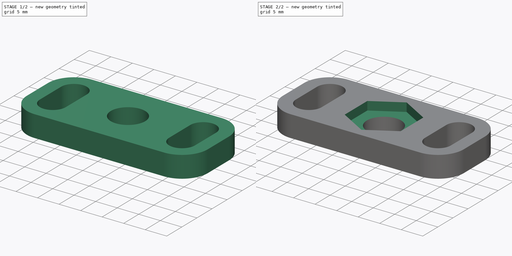
[diagram: build sequence overview — one tinted view per stage of 2, left to right]
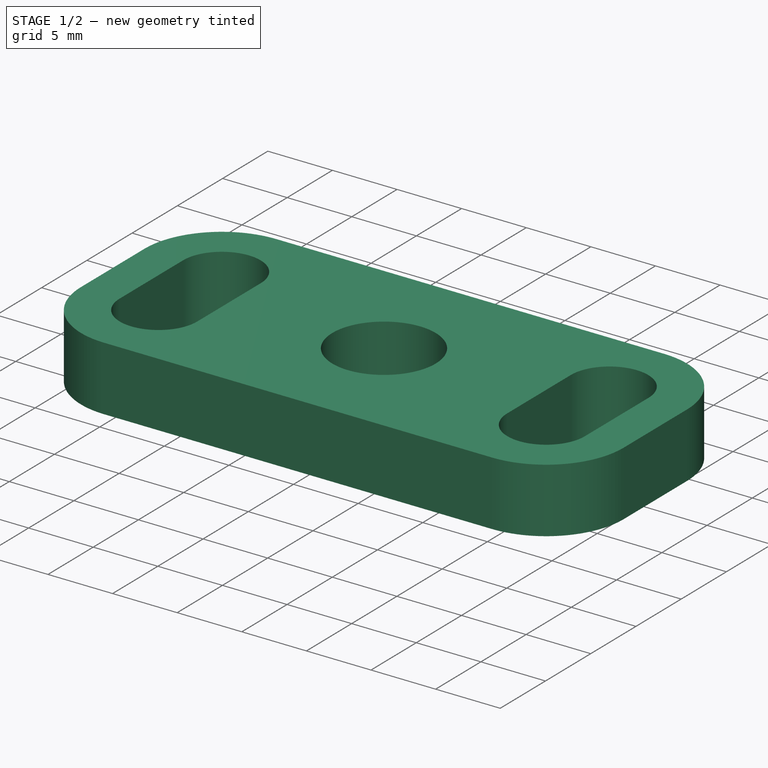
[diagram: stage 1 of 2 — iso view after this stage's code; geometry added in this stage tinted green]
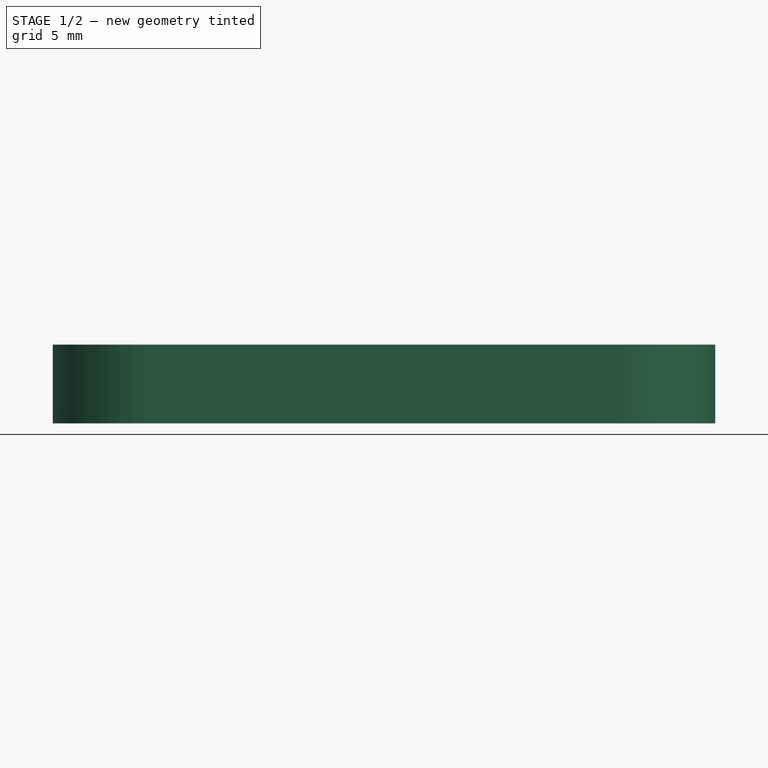
[diagram: stage 1 of 2 — front view after this stage's code; geometry added in this stage tinted green]
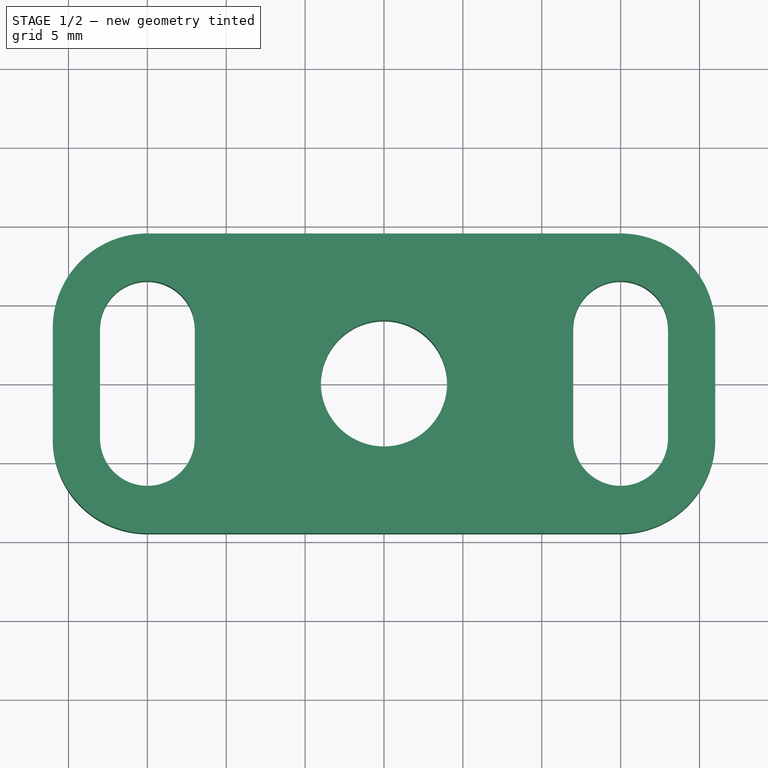
[diagram: stage 1 of 2 — top view after this stage's code; geometry added in this stage tinted green]
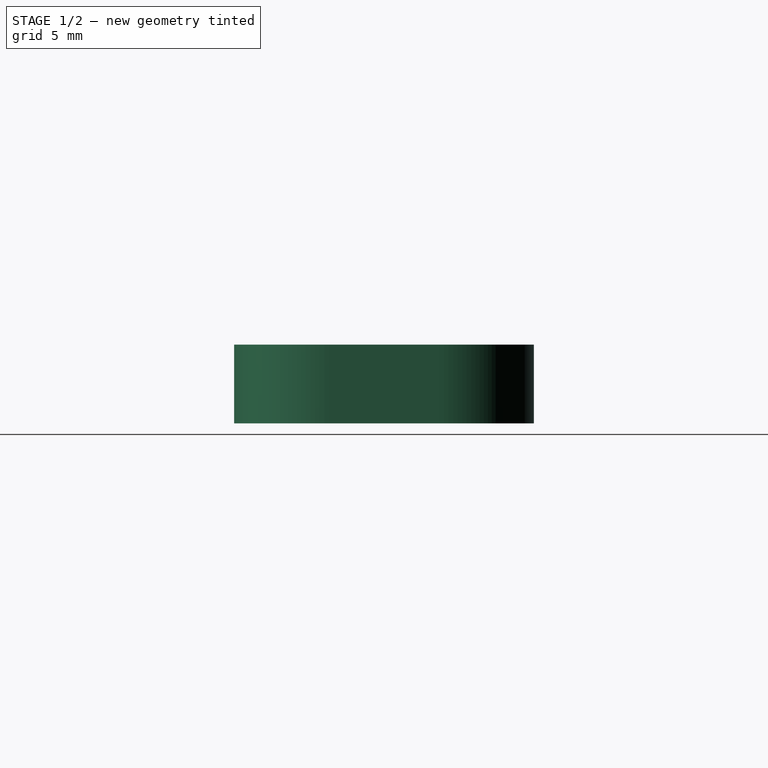
[diagram: stage 1 of 2 — right view after this stage's code; geometry added in this stage tinted green]
FCSTD DOCUMENT  (FreeCAD 0.19R24291 (Git))
Label: держатель иголок 1
License: All rights reserved
LicenseURL: http://en.wikipedia.org/wiki/All_rights_reserved
objects: Sketcher::SketchObject×2, PartDesign::Pad×1, PartDesign::Pocket×1, PartDesign::Body×1
note: 7 computed .brp shape members not serialized (recipe doc carries the construction recipe); baked Part::Feature solids carry a one-line shape summary decoded from their .brp

FEATURE [Sketcher::SketchObject] Sketch
  FullyConstrained = true
  MapMode = 5
  Support = -> [XY_Plane]
  sketch-geometry (28):
    g0: LineSegment StartX=-15 StartY=-9.5 StartZ=0 EndX=15 EndY=-9.5 EndZ=0
    g1: LineSegment StartX=21 StartY=-3.5 StartZ=0 EndX=21 EndY=3.5 EndZ=0
    g2: LineSegment StartX=15 StartY=9.5 StartZ=0 EndX=-15 EndY=9.5 EndZ=0
    g3: LineSegment StartX=-21 StartY=3.5 StartZ=0 EndX=-21 EndY=-3.5 EndZ=0
    g4: ArcOfCircle CenterX=15 CenterY=3.5 CenterZ=0 NormalX=0 NormalY=0 NormalZ=1 AngleXU=0 Radius=6 StartAngle=0 EndAngle=1.5708
    g5: ArcOfCircle CenterX=-15 CenterY=3.5 CenterZ=0 NormalX=0 NormalY=0 NormalZ=1 AngleXU=0 Radius=6 StartAngle=1.5708 EndAngle=3.14159
    g6: ArcOfCircle CenterX=-15 CenterY=-3.5 CenterZ=0 NormalX=0 NormalY=0 NormalZ=1 AngleXU=0 Radius=6 StartAngle=3.14159 EndAngle=4.71239
    g7: ArcOfCircle CenterX=15 CenterY=-3.5 CenterZ=0 NormalX=0 NormalY=0 NormalZ=1 AngleXU=0 Radius=6 StartAngle=4.71239 EndAngle=6.28319
    g8: ArcOfCircle CenterX=-15 CenterY=3.5 CenterZ=0 NormalX=0 NormalY=0 NormalZ=1 AngleXU=0 Radius=3 StartAngle=2e-16 EndAngle=3.14159
    g9: ArcOfCircle CenterX=-15 CenterY=-3.5 CenterZ=0 NormalX=0 NormalY=0 NormalZ=1 AngleXU=0 Radius=3 StartAngle=3.14159 EndAngle=6.28319
    g10: LineSegment StartX=-18 StartY=3.5 StartZ=0 EndX=-18 EndY=-3.5 EndZ=0
    g11: LineSegment StartX=-12 StartY=3.5 StartZ=0 EndX=-12 EndY=-3.5 EndZ=0
    g12: ArcOfCircle CenterX=15 CenterY=3.5 CenterZ=0 NormalX=0 NormalY=0 NormalZ=1 AngleXU=0 Radius=3 StartAngle=2e-16 EndAngle=3.14159
    g13: ArcOfCircle CenterX=15 CenterY=-3.5 CenterZ=0 NormalX=0 NormalY=0 NormalZ=1 AngleXU=0 Radius=3 StartAngle=3.14159 EndAngle=6.28319
    g14: LineSegment StartX=12 StartY=3.5 StartZ=0 EndX=12 EndY=-3.5 EndZ=0
    g15: LineSegment StartX=18 StartY=3.5 StartZ=0 EndX=18 EndY=-3.5 EndZ=0
    g16: LineSegment StartX=-21 StartY=0 StartZ=0 EndX=0 EndY=0 EndZ=0
    g17: LineSegment StartX=0 StartY=0 StartZ=0 EndX=21 EndY=0 EndZ=0
    g18: LineSegment StartX=0 StartY=9.5 StartZ=0 EndX=0 EndY=0 EndZ=0
    g19: LineSegment StartX=0 StartY=0 StartZ=0 EndX=0 EndY=-9.5 EndZ=0
    g20: Circle CenterX=0 CenterY=0 CenterZ=0 NormalX=0 NormalY=0 NormalZ=1 AngleXU=0 Radius=4
    g21: LineSegment StartX=6.697e-13 StartY=7.50555 StartZ=0 EndX=-6.5 EndY=3.75278 EndZ=0
    g22: LineSegment StartX=-6.5 StartY=3.75278 StartZ=0 EndX=-6.5 EndY=-3.75278 EndZ=0
    g23: LineSegment StartX=-6.5 StartY=-3.75278 StartZ=0 EndX=9.379e-13 EndY=-7.50555 EndZ=0
    g24: LineSegment StartX=9.379e-13 StartY=-7.50555 StartZ=0 EndX=6.5 EndY=-3.75278 EndZ=0
    g25: LineSegment StartX=6.5 StartY=-3.75278 StartZ=0 EndX=6.5 EndY=3.75278 EndZ=0
    g26: LineSegment StartX=6.5 StartY=3.75278 StartZ=0 EndX=6.697e-13 EndY=7.50555 EndZ=0
    g27: Circle CenterX=0 CenterY=0 CenterZ=0 NormalX=0 NormalY=0 NormalZ=1 AngleXU=0 Radius=7.50555
  constraints (66):
    c: Horizontal(g0)
    c: Horizontal(g2)
    c: Vertical(g1)
    c: Vertical(g3)
    c: Tangent(g1,g4) = -1.5708
    c: Tangent(g2,g4) = -1.5708
    c: Tangent(g2,g5) = -1.5708
    c: Tangent(g3,g5) = -1.5708
    c: Tangent(g0,g6) = -1.5708
    c: Tangent(g3,g6) = -1.5708
    c: Tangent(g0,g7) = -1.5708
    c: Tangent(g1,g7) = -1.5708
    c: Equal(g7,g4)
    c: Equal(g4,g5)
    c: Equal(g5,g6)
    c: Tangent(g8,g11) = 1.5708
    c: Tangent(g8,g10) = -1.5708
    c: Tangent(g10,g9) = -1.5708
    c: Tangent(g11,g9) = 1.5708
    c: Vertical(g10)
    c: Coincident(g8,g5)
    c: Coincident(g6,g9)
    c: Tangent(g12,g15) = 1.5708
    c: Tangent(g12,g14) = -1.5708
    c: Tangent(g14,g13) = -1.5708
    c: Tangent(g15,g13) = 1.5708
    c: Vertical(g14)
    c: Coincident(g12,g4)
    c: Coincident(g13,g7)
    c: Equal(g12,g8)
    c: PointOnObject(g16,g3)
    c: Horizontal(g16)
    c: Coincident(g16,g17)
    c: PointOnObject(g17,g1)
    c: Horizontal(g17)
    c: PointOnObject(g18,g2)
    c: Coincident(g18,g16)
    c: Vertical(g18)
    c: Coincident(g18,g19)
    c: PointOnObject(g19,g0)
    c: Vertical(g19)
    c: Equal(g18,g19)
    c: Equal(g17,g16)
    c: Coincident(g16,g-1)
    c: Diameter(g9) = 6
    c: Coincident(g20,g-1)
    c: Diameter(g20) = 8
    c: Coincident(g21,g22)
    c: Coincident(g22,g23)
    c: Coincident(g23,g24)
    c: Coincident(g24,g25)
    c: Coincident(g25,g26)
    c: Coincident(g26,g21)
    c: Equal(g21, g22-g26) x5
    c: PointOnObject(g21,g27)
    c: PointOnObject(g22,g27)
    c: PointOnObject(g23,g27)
    c: PointOnObject(g24,g27)
    c: PointOnObject(g25,g27)
    c: PointOnObject(g26,g27)
    c: Coincident(g27,g20)
    c: Vertical(g25)
    c: Distance(g24,g22) = 13
    c: Diameter(g5) = 12
    c: Distance(g4,g5) = 30
    c: Distance(g18,g19) = 19
FEATURE [PartDesign::Pad] Pad
  Direction = (1,1,1)
  Length = 5
  Length2 = 100
  Profile = -> Sketch
  Type = 0
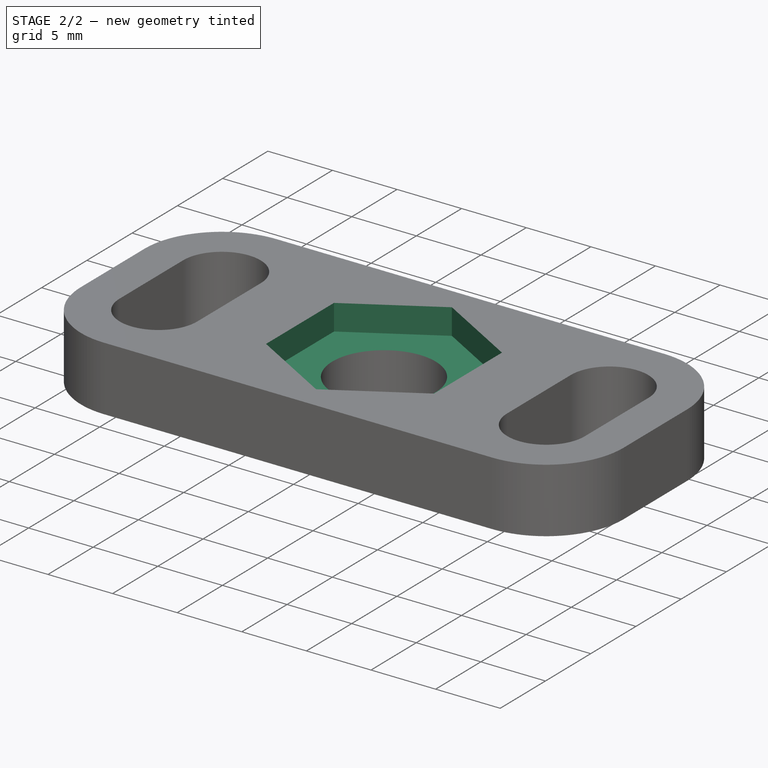
[diagram: stage 2 of 2 — iso view after this stage's code; geometry added in this stage tinted green]
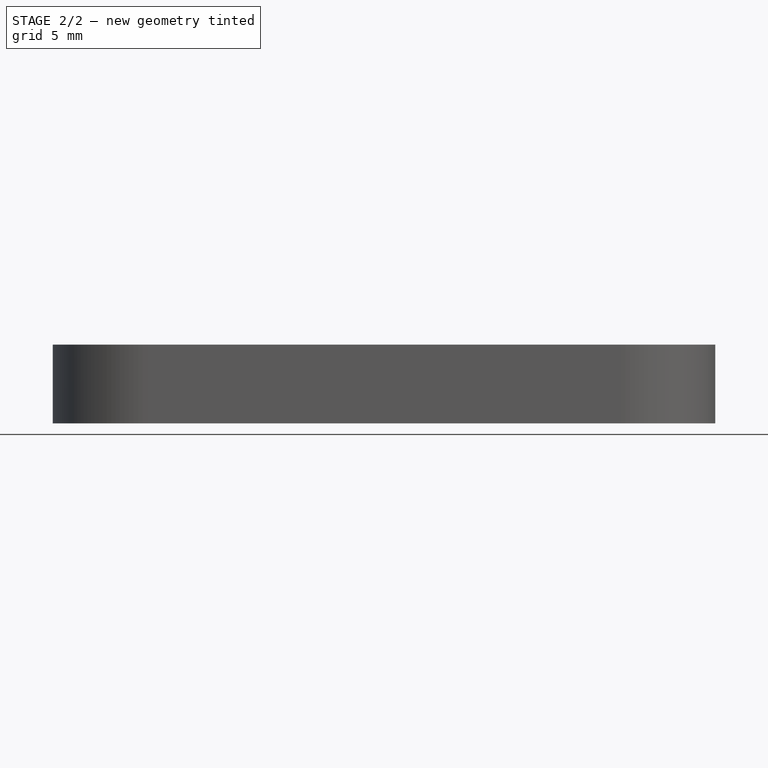
[diagram: stage 2 of 2 — front view after this stage's code; geometry added in this stage tinted green]
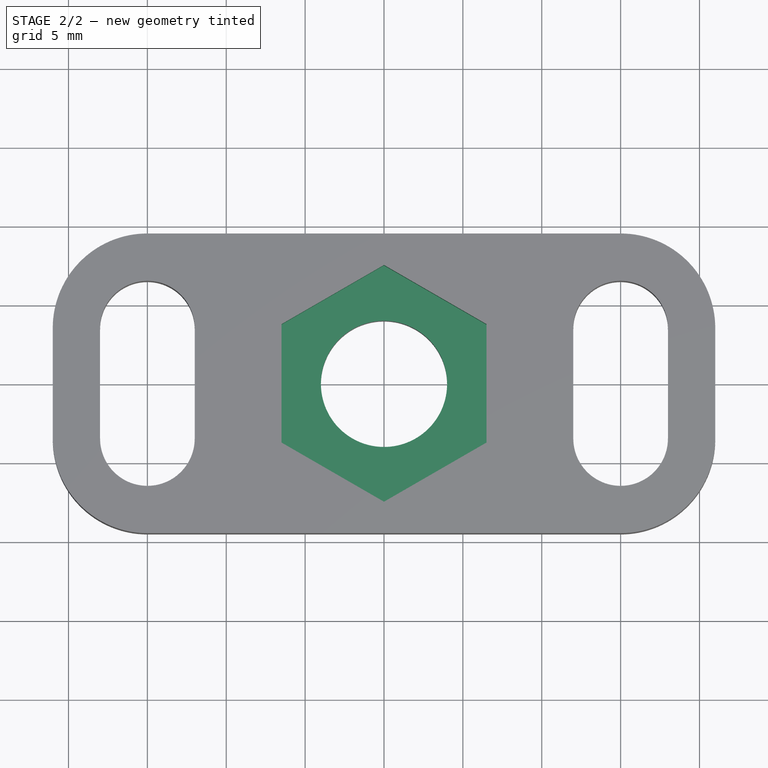
[diagram: stage 2 of 2 — top view after this stage's code; geometry added in this stage tinted green]
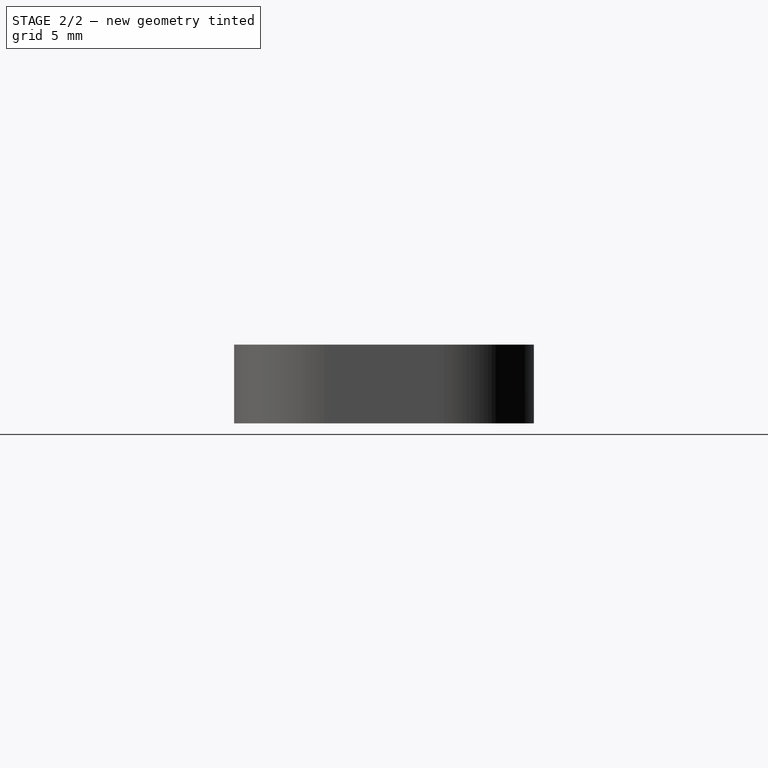
[diagram: stage 2 of 2 — right view after this stage's code; geometry added in this stage tinted green]
FEATURE [Sketcher::SketchObject] Sketch001
  ExternalGeometry = -> [Pad]
  FullyConstrained = true
  MapMode = 5
  Placement = pos=(0,0,5) rot=(0,0,1;0rad)
  Support = -> [Pad]
  sketch-geometry (7):
    g0: LineSegment StartX=6.5 StartY=3.75278 StartZ=0 EndX=2.04e-14 EndY=7.50555 EndZ=0
    g1: LineSegment StartX=2.04e-14 StartY=7.50555 StartZ=0 EndX=-6.5 EndY=3.75278 EndZ=0
    g2: LineSegment StartX=-6.5 StartY=3.75278 StartZ=0 EndX=-6.5 EndY=-3.75278 EndZ=0
    g3: LineSegment StartX=-6.5 StartY=-3.75278 StartZ=0 EndX=2.13e-14 EndY=-7.50555 EndZ=0
    g4: LineSegment StartX=2.13e-14 StartY=-7.50555 StartZ=0 EndX=6.5 EndY=-3.75278 EndZ=0
    g5: LineSegment StartX=6.5 StartY=-3.75278 StartZ=0 EndX=6.5 EndY=3.75278 EndZ=0
    g6: Circle CenterX=0 CenterY=0 CenterZ=0 NormalX=0 NormalY=0 NormalZ=1 AngleXU=0 Radius=7.50555
  constraints (16):
    c: Coincident(g0,g1)
    c: Coincident(g1,g2)
    c: Coincident(g2,g3)
    c: Coincident(g3,g4)
    c: Coincident(g4,g5)
    c: Coincident(g5,g0)
    c: Equal(g0, g1-g5) x5
    c: PointOnObject(g0,g6)
    c: PointOnObject(g1,g6)
    c: PointOnObject(g2,g6)
    c: PointOnObject(g3,g6)
    c: PointOnObject(g4,g6)
    c: PointOnObject(g5,g6)
    c: Coincident(g6,g-1)
    c: Vertical(g5)
    c: Distance(g4,g2) = 13
FEATURE [PartDesign::Pocket] Pocket
  BaseFeature = -> Pad
  Length = 2
  Length2 = 100
  Profile = -> Sketch001
  Type = 0
FEATURE [PartDesign::Body] Body
  Group = -> [Sketch,Pad,Sketch001,Pocket]
  Origin = -> Origin
  Tip = -> Pocket
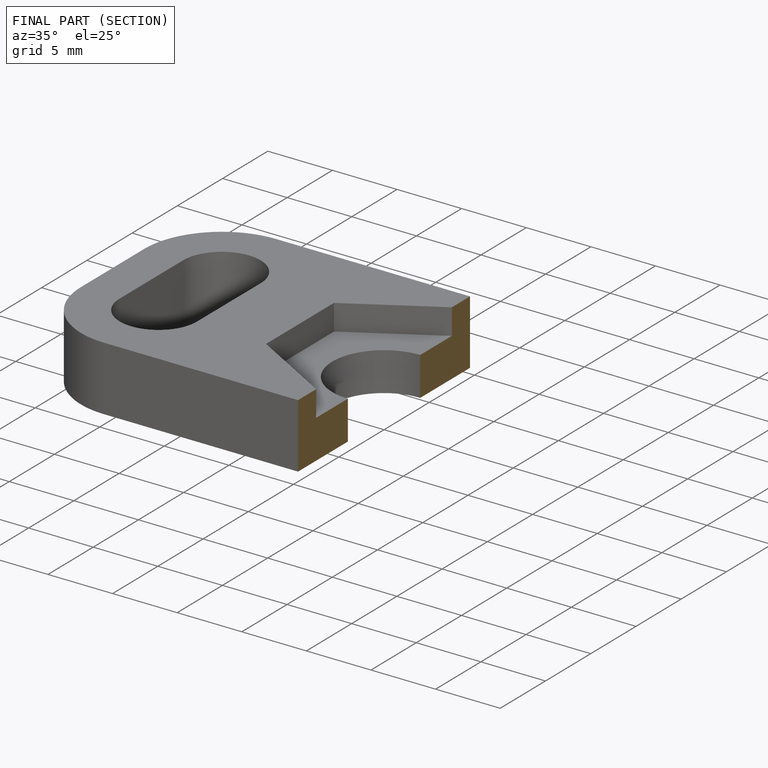
[diagram: finished part — half-section view (interior)]
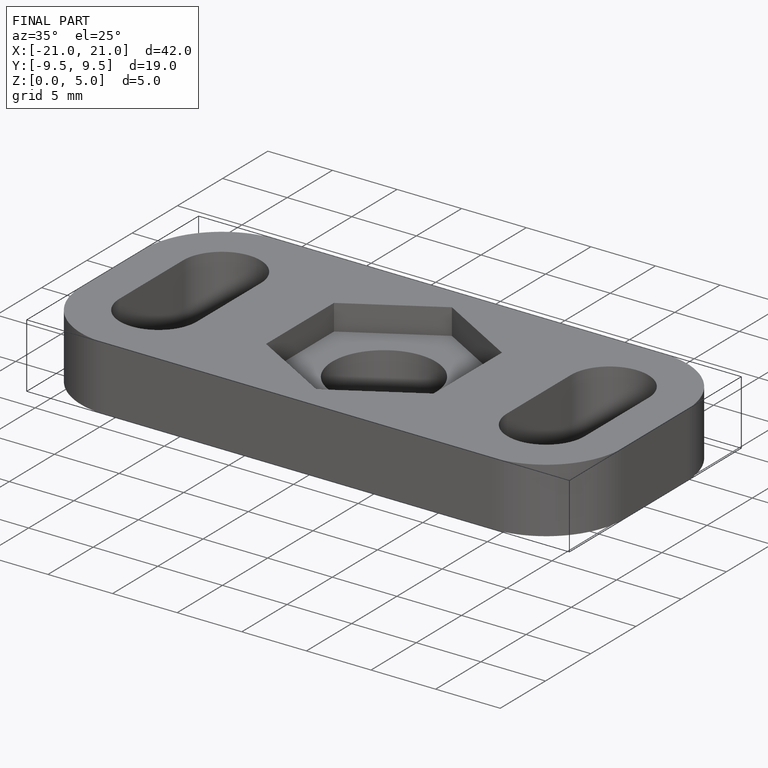
[diagram: finished part — iso view with bounding-box wireframe]
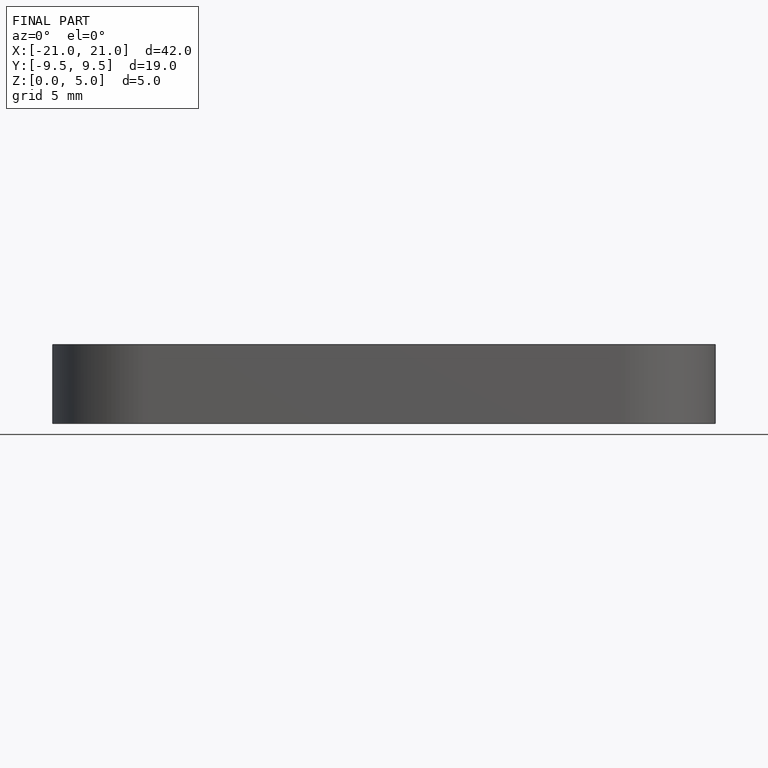
[diagram: finished part — front view with bounding-box wireframe]
